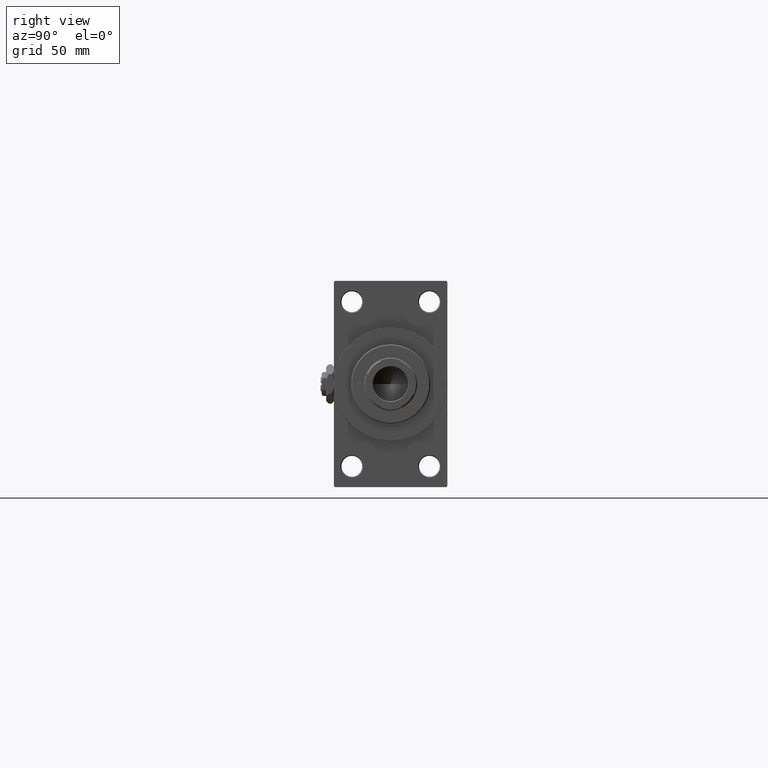
[diagram: clean part render]
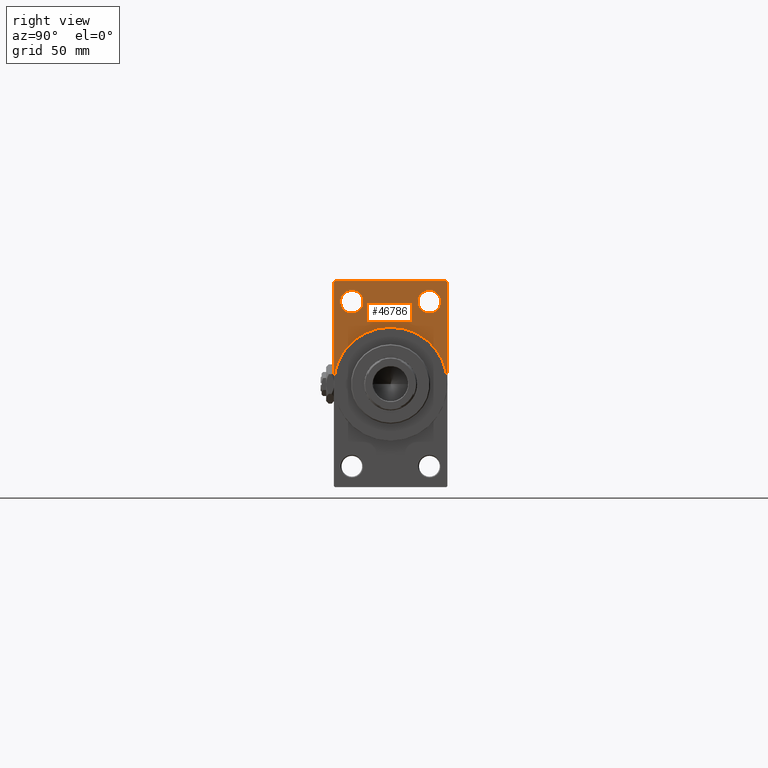
[diagram: same view with one face highlighted and labeled with its STEP entity id]
A machine part, right view. The second image highlights one B-rep face of the part: STEP entity #46786.
In plain terms, the highlighted planar face has unit normal (-1, 0, 0).
Its self-contained STEP definition (entity closure, byte-faithful):
#172 = DIRECTION ( 'NONE',  ( 0.000000000000000000, -1.000000000000000000, 1.156482317317871478E-16 ) ) ;
#1412 = CARTESIAN_POINT ( 'NONE',  ( 317.9999999999999432, -30.00000000000000000, 0.000000000000000000 ) ) ;
#2573 = CIRCLE ( 'NONE', #36809, 5.999999999999977796 ) ;
#2769 = CIRCLE ( 'NONE', #34641, 30.00000000000000000 ) ;
#3062 = VERTEX_POINT ( 'NONE', #19329 ) ;
#3350 = ORIENTED_EDGE ( 'NONE', *, *, #20327, .T. ) ;
#3794 = VERTEX_POINT ( 'NONE', #1412 ) ;
#4561 = CARTESIAN_POINT ( 'NONE',  ( 317.9999999999999432, 29.49999999999999645, 54.49999999999999289 ) ) ;
#4842 = ORIENTED_EDGE ( 'NONE', *, *, #42741, .T. ) ;
#6040 = EDGE_LOOP ( 'NONE', ( #8176, #23615 ) ) ;
#6153 = EDGE_CURVE ( 'NONE', #6654, #37025, #23239, .T. ) ;
#6313 = DIRECTION ( 'NONE',  ( 0.000000000000000000, 0.000000000000000000, 1.000000000000000000 ) ) ;
#6654 = VERTEX_POINT ( 'NONE', #8365 ) ;
#7204 = DIRECTION ( 'NONE',  ( 0.000000000000000000, 0.000000000000000000, -1.000000000000000000 ) ) ;
#7675 = ORIENTED_EDGE ( 'NONE', *, *, #21240, .T. ) ;
#7699 = AXIS2_PLACEMENT_3D ( 'NONE', #25235, #33705, #6313 ) ;
#8002 = VERTEX_POINT ( 'NONE', #4561 ) ;
#8176 = ORIENTED_EDGE ( 'NONE', *, *, #34648, .T. ) ;
#8179 = ORIENTED_EDGE ( 'NONE', *, *, #45013, .T. ) ;
#8365 = CARTESIAN_POINT ( 'NONE',  ( 317.9999999999999432, 29.99999999999999645, 53.99999999999996447 ) ) ;
#10126 = CARTESIAN_POINT ( 'NONE',  ( 317.9999999999999432, -29.49999999999994671, 54.50000000000000000 ) ) ;
#10364 = EDGE_CURVE ( 'NONE', #37025, #3062, #2769, .T. ) ;
#10803 = CIRCLE ( 'NONE', #42672, 5.999999999999977796 ) ;
#10813 = CARTESIAN_POINT ( 'NONE',  ( 317.9999999999999432, 20.50000000000000000, 37.50000000000002132 ) ) ;
#10870 = CARTESIAN_POINT ( 'NONE',  ( 317.9999999999999432, -30.00000000000000000, 53.99999999999994316 ) ) ;
#10946 = DIRECTION ( 'NONE',  ( 1.000000000000000000, 0.000000000000000000, 0.000000000000000000 ) ) ;
#11027 = VERTEX_POINT ( 'NONE', #10813 ) ;
#11574 = ORIENTED_EDGE ( 'NONE', *, *, #10364, .F. ) ;
#11676 = VECTOR ( 'NONE', #32705, 1000.000000000000000 ) ;
#13191 = CARTESIAN_POINT ( 'NONE',  ( 317.9999999999999432, -20.50000000000000000, 43.50000000000000000 ) ) ;
#15775 = CARTESIAN_POINT ( 'NONE',  ( 317.9999999999999432, 0.000000000000000000, 0.000000000000000000 ) ) ;
#16014 = DIRECTION ( 'NONE',  ( 1.000000000000000000, 0.000000000000000000, 0.000000000000000000 ) ) ;
#16690 = FACE_BOUND ( 'NONE', #6040, .T. ) ;
#17480 = CARTESIAN_POINT ( 'NONE',  ( 317.9999999999999432, 29.49999999999999645, 54.49999999999999289 ) ) ;
#18071 = LINE ( 'NONE', #10870, #40358 ) ;
#18535 = VERTEX_POINT ( 'NONE', #43547 ) ;
#18721 = CARTESIAN_POINT ( 'NONE',  ( 317.9999999999999432, 20.50000000000000000, 43.50000000000000000 ) ) ;
#19008 = FACE_BOUND ( 'NONE', #35758, .T. ) ;
#19329 = CARTESIAN_POINT ( 'NONE',  ( 317.9999999999999432, 0.000000000000000000, 30.00000000000000000 ) ) ;
#20162 = VERTEX_POINT ( 'NONE', #29221 ) ;
#20327 = EDGE_CURVE ( 'NONE', #22343, #3794, #28366, .T. ) ;
#20868 = DIRECTION ( 'NONE',  ( 0.000000000000000000, 0.000000000000000000, -1.000000000000000000 ) ) ;
#21240 = EDGE_CURVE ( 'NONE', #8002, #41744, #30079, .T. ) ;
#21352 = ORIENTED_EDGE ( 'NONE', *, *, #37098, .T. ) ;
#22224 = DIRECTION ( 'NONE',  ( -1.000000000000000000, 0.000000000000000000, -0.000000000000000000 ) ) ;
#22343 = VERTEX_POINT ( 'NONE', #47070 ) ;
#22652 = VERTEX_POINT ( 'NONE', #32224 ) ;
#23239 = LINE ( 'NONE', #38210, #44784 ) ;
#23615 = ORIENTED_EDGE ( 'NONE', *, *, #27764, .T. ) ;
#24174 = DIRECTION ( 'NONE',  ( -1.000000000000000000, 0.000000000000000000, -0.000000000000000000 ) ) ;
#24553 = CIRCLE ( 'NONE', #27772, 5.999999999999977796 ) ;
#24981 = CARTESIAN_POINT ( 'NONE',  ( 317.9999999999999432, 30.00000000000000000, 0.000000000000000000 ) ) ;
#25235 = CARTESIAN_POINT ( 'NONE',  ( 317.9999999999999432, -20.50000000000000000, 43.50000000000000000 ) ) ;
#26108 = VECTOR ( 'NONE', #172, 1000.000000000000000 ) ;
#27688 = CARTESIAN_POINT ( 'NONE',  ( 317.9999999999999432, 0.000000000000000000, 0.000000000000000000 ) ) ;
#27764 = EDGE_CURVE ( 'NONE', #18535, #11027, #2573, .T. ) ;
#27772 = AXIS2_PLACEMENT_3D ( 'NONE', #13191, #31891, #47092 ) ;
#28366 = LINE ( 'NONE', #35846, #44389 ) ;
#29221 = CARTESIAN_POINT ( 'NONE',  ( 317.9999999999999432, -20.50000000000000000, 49.49999999999997158 ) ) ;
#29396 = AXIS2_PLACEMENT_3D ( 'NONE', #27688, #24174, #47106 ) ;
#30079 = LINE ( 'NONE', #34811, #26108 ) ;
#30187 = DIRECTION ( 'NONE',  ( -1.000000000000000000, 0.000000000000000000, -0.000000000000000000 ) ) ;
#30493 = PLANE ( 'NONE',  #29396 ) ;
#31891 = DIRECTION ( 'NONE',  ( -1.000000000000000000, 0.000000000000000000, -0.000000000000000000 ) ) ;
#32224 = CARTESIAN_POINT ( 'NONE',  ( 317.9999999999999432, -20.50000000000000000, 37.50000000000002132 ) ) ;
#32476 = ORIENTED_EDGE ( 'NONE', *, *, #43118, .F. ) ;
#32705 = DIRECTION ( 'NONE',  ( 0.000000000000000000, -0.7071067811865279218, 0.7071067811865672237 ) ) ;
#33705 = DIRECTION ( 'NONE',  ( -1.000000000000000000, 0.000000000000000000, -0.000000000000000000 ) ) ;
#34471 = DIRECTION ( 'NONE',  ( 0.000000000000000000, 0.000000000000000000, -1.000000000000000000 ) ) ;
#34641 = AXIS2_PLACEMENT_3D ( 'NONE', #45314, #10946, #7204 ) ;
#34648 = EDGE_CURVE ( 'NONE', #11027, #18535, #10803, .T. ) ;
#34811 = CARTESIAN_POINT ( 'NONE',  ( 317.9999999999999432, 29.99999999999999645, 54.49999999999999289 ) ) ;
#35630 = CIRCLE ( 'NONE', #37227, 30.00000000000000000 ) ;
#35758 = EDGE_LOOP ( 'NONE', ( #8179, #21352 ) ) ;
#35792 = ORIENTED_EDGE ( 'NONE', *, *, #39957, .T. ) ;
#35846 = CARTESIAN_POINT ( 'NONE',  ( 317.9999999999999432, -30.00000000000000000, 54.50000000000000000 ) ) ;
#36809 = AXIS2_PLACEMENT_3D ( 'NONE', #44635, #30187, #37424 ) ;
#37025 = VERTEX_POINT ( 'NONE', #24981 ) ;
#37098 = EDGE_CURVE ( 'NONE', #20162, #22652, #45096, .T. ) ;
#37227 = AXIS2_PLACEMENT_3D ( 'NONE', #15775, #16014, #34471 ) ;
#37424 = DIRECTION ( 'NONE',  ( 0.000000000000000000, 0.000000000000000000, 1.000000000000000000 ) ) ;
#37445 = DIRECTION ( 'NONE',  ( 0.000000000000000000, 0.000000000000000000, 1.000000000000000000 ) ) ;
#38210 = CARTESIAN_POINT ( 'NONE',  ( 317.9999999999999432, 29.99999999999999645, 54.49999999999999289 ) ) ;
#38457 = DIRECTION ( 'NONE',  ( 0.000000000000000000, 0.000000000000000000, -1.000000000000000000 ) ) ;
#38925 = EDGE_LOOP ( 'NONE', ( #7675, #4842, #3350, #32476, #11574, #44761, #35792 ) ) ;
#39704 = LINE ( 'NONE', #17480, #11676 ) ;
#39957 = EDGE_CURVE ( 'NONE', #6654, #8002, #39704, .T. ) ;
#40358 = VECTOR ( 'NONE', #41016, 1000.000000000000114 ) ;
#41016 = DIRECTION ( 'NONE',  ( -0.000000000000000000, -0.7071067811865451302, -0.7071067811865500152 ) ) ;
#41744 = VERTEX_POINT ( 'NONE', #10126 ) ;
#42672 = AXIS2_PLACEMENT_3D ( 'NONE', #18721, #22224, #37445 ) ;
#42741 = EDGE_CURVE ( 'NONE', #41744, #22343, #18071, .T. ) ;
#43118 = EDGE_CURVE ( 'NONE', #3062, #3794, #35630, .T. ) ;
#43356 = FACE_OUTER_BOUND ( 'NONE', #38925, .T. ) ;
#43547 = CARTESIAN_POINT ( 'NONE',  ( 317.9999999999999432, 20.50000000000000000, 49.49999999999997158 ) ) ;
#44389 = VECTOR ( 'NONE', #20868, 1000.000000000000000 ) ;
#44635 = CARTESIAN_POINT ( 'NONE',  ( 317.9999999999999432, 20.50000000000000000, 43.50000000000000000 ) ) ;
#44761 = ORIENTED_EDGE ( 'NONE', *, *, #6153, .F. ) ;
#44784 = VECTOR ( 'NONE', #38457, 1000.000000000000000 ) ;
#45013 = EDGE_CURVE ( 'NONE', #22652, #20162, #24553, .T. ) ;
#45096 = CIRCLE ( 'NONE', #7699, 5.999999999999977796 ) ;
#45314 = CARTESIAN_POINT ( 'NONE',  ( 317.9999999999999432, 0.000000000000000000, 0.000000000000000000 ) ) ;
#46786 = ADVANCED_FACE ( 'NONE', ( #19008, #16690, #43356 ), #30493, .F. ) ;
#47070 = CARTESIAN_POINT ( 'NONE',  ( 317.9999999999999432, -30.00000000000000000, 53.99999999999994316 ) ) ;
#47092 = DIRECTION ( 'NONE',  ( 0.000000000000000000, 0.000000000000000000, 1.000000000000000000 ) ) ;
#47106 = DIRECTION ( 'NONE',  ( -0.000000000000000000, 0.000000000000000000, 1.000000000000000000 ) ) ;